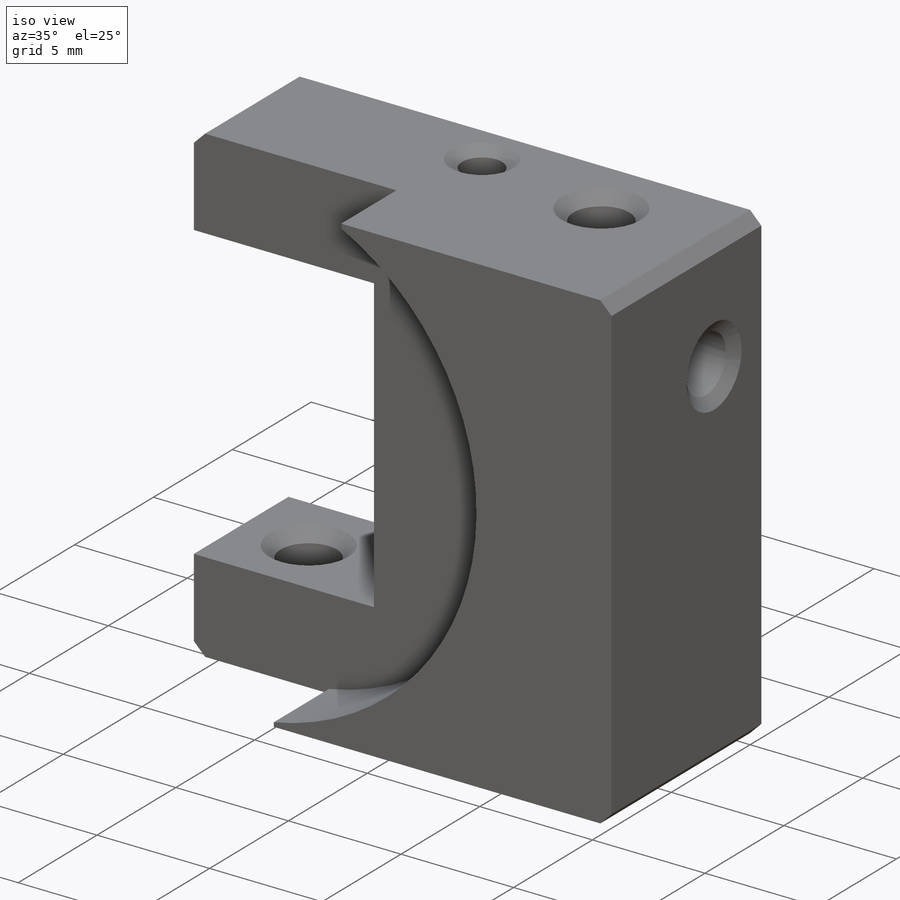
[diagram: iso view]
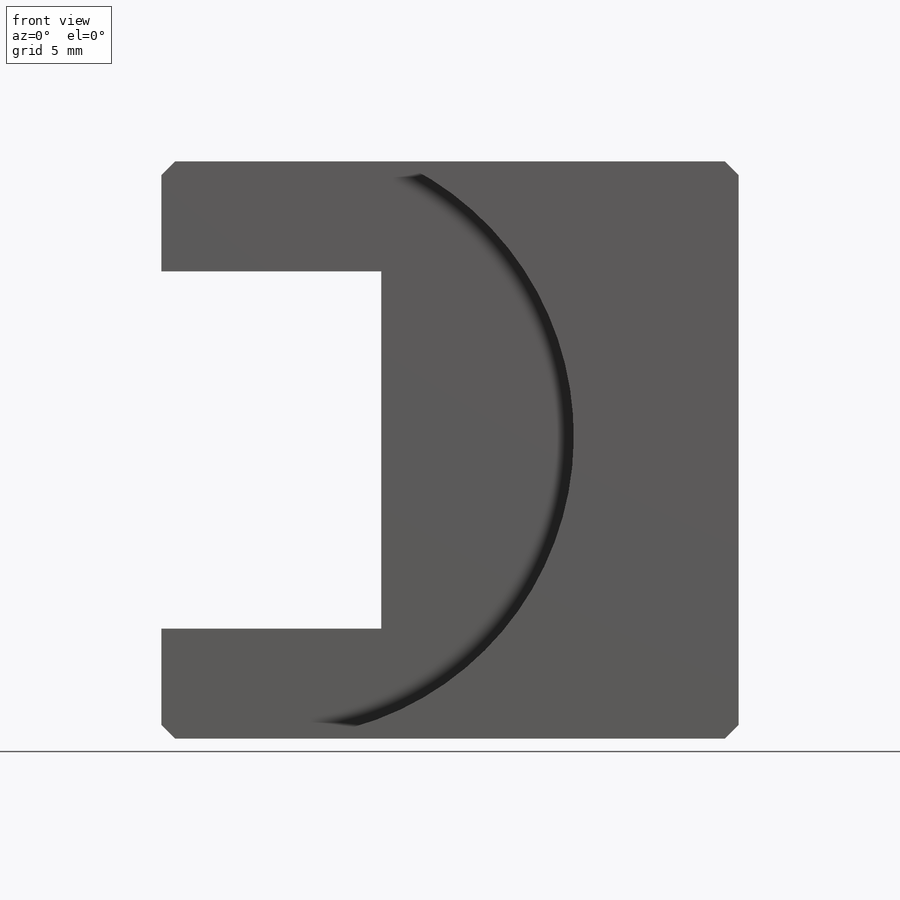
[diagram: front view]
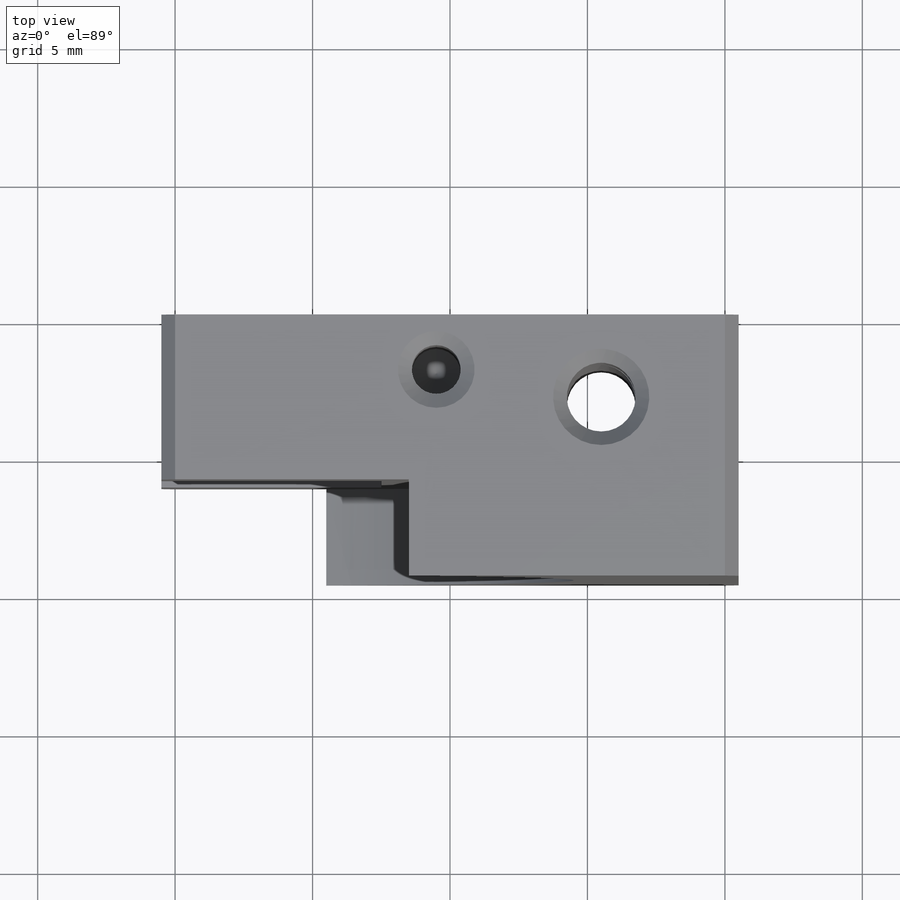
[diagram: top view]
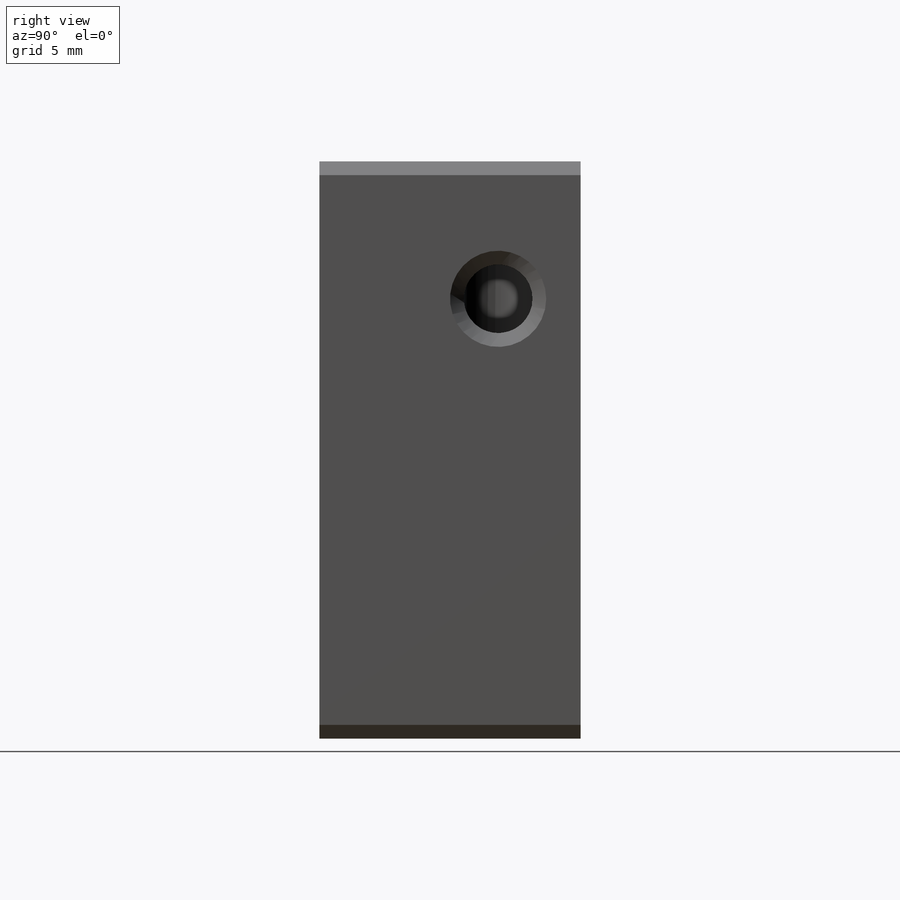
[diagram: right view]
SOLIDWORKS PART (.sldprt)
format: sldprt  version: not decoded by parser v0  size: 338,432 bytes
history: native  units: mm
features: sketch x9, extrude x5, thread x4, plane x3, hole x3, cut_extrude x2, material x1, chamfer x1 (+14 scaffold rows collapsed)
feature tree (42):
  scaffold x14  (default folders/planes/origin — collapsed)
  material  "2024-T4"
  plane  "Спереди"
  plane  "Сверху"
  plane  "Справа"
  sketch  "Эскиз1"  dims[D1=21.0mm D2=21.0mm]
  extrude  "Бобышка-Вытянуть1"  Depth=9.5mm
  sketch  "Эскиз2"  dims[D1=11.0mm D2=6.0mm D3=6.0mm D4=9.0mm]
  cut_extrude  "Вырез-Вытянуть3"  Depth=3.5mm
  sketch  "Эскиз3"  dims[D1=8.0mm D2=4.0mm D3=4.0mm]
  cut_extrude  "Вырез-Вытянуть4"  Depth=0mm Material_Int=0mm Material_Ext=0mm Surface=0mm
  extrude  "OptisFaceAttribut_1"  Depth=0mm Surface=0mm Material_Int=0mm Material_Ext=0mm
  extrude  "OptisFaceAttribut_2"  Depth=0mm Surface=0mm Material_Int=0mm Material_Ext=0mm
  extrude  "OptisFaceAttribut_3"  Depth=0mm Surface=0mm Material_Int=0mm Material_Ext=0mm
  extrude  "OptisFaceAttribut_4"  Depth=0mm Surface=0mm Material_Int=0mm Material_Ext=0mm
  hole  "Отверстие обработанное метчиком M31"  [1 undecoded]
  sketch  "Эскиз5"  dims[D1=13.0mm D2=3.0mm D3=3.0mm]
  sketch  "Эскиз4"  dims[hole-wizard template sketch: 47 standard entries collapsed; hole parameters kept: c15.Глубина проходного сверла=4.0mm c15.Диаметр передней зенковки=3.5mm c15.D4=~3.666174mm c15.Угол передней зенковки=110.0deg c15.Диаметр задней зенковки=3.5mm c15.D6=~9.919017mm c15.Угол задней зенковки=90.0deg]
  thread  "Отверстие резьбы1"  Diameter=3mm  [1 undecoded]
  thread  "Отверстие резьбы2"  Diameter=3mm  [1 undecoded]
  chamfer  "Фаска1"  Distance=0.5mm Angle=45deg
  hole  "Отверстие обработанное метчиком #2-561"  [1 undecoded]
  sketch  "Эскиз7"  dims[D1=2.0mm D2=11.0mm]
  sketch  "Эскиз6"  dims[hole-wizard template sketch: 39 standard entries collapsed; hole parameters kept: c13.Диаметр сверла=1.778mm c13.Глубина сверла=8.27mm c13.Диаметр передней зенковки=2.794mm c13.D4=~33.297463mm c13.Угол передней зенковки=110.0deg c14.D5=~14.816244mm c14.Угол заточки сверла=118.0deg]
  thread  "Отверстие резьбы3"  Diameter=6mm  [1 undecoded]
  hole  "Отверстие обработанное метчиком M32"  [1 undecoded]
  sketch  "Эскиз9"  dims[D1=3.0mm D2=16.0mm]
  sketch  "Эскиз8"  dims[hole-wizard template sketch: 55 standard entries collapsed; hole parameters kept: c17.Глубина проходного сверла=3.75mm c17.Диаметр передней зенковки=3.5mm c17.D4=~3.666174mm c17.Угол передней зенковки=110.0deg]
  thread  "Отверстие резьбы4"  Diameter=3mm  [1 undecoded]
decode coverage: 21 of 24 modeling features carry decoded parameters
note: ~ marks probable driven/reference dimensions
note: 7 parameter values undecoded
summary: no parameter record found for 3 features
note: suppression state not decoded; provenance and decode notes live in map.json
